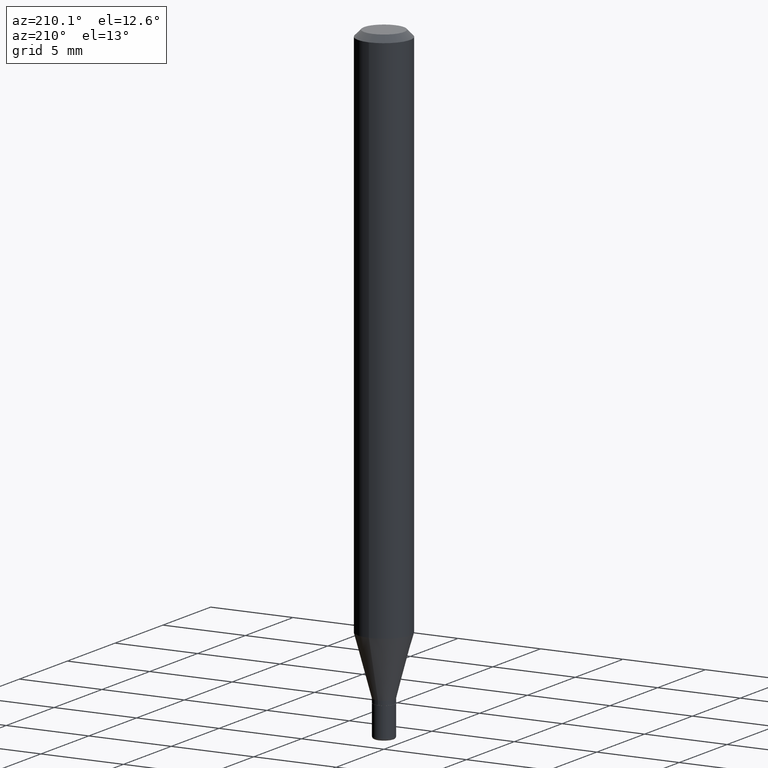
[diagram: clean part render]
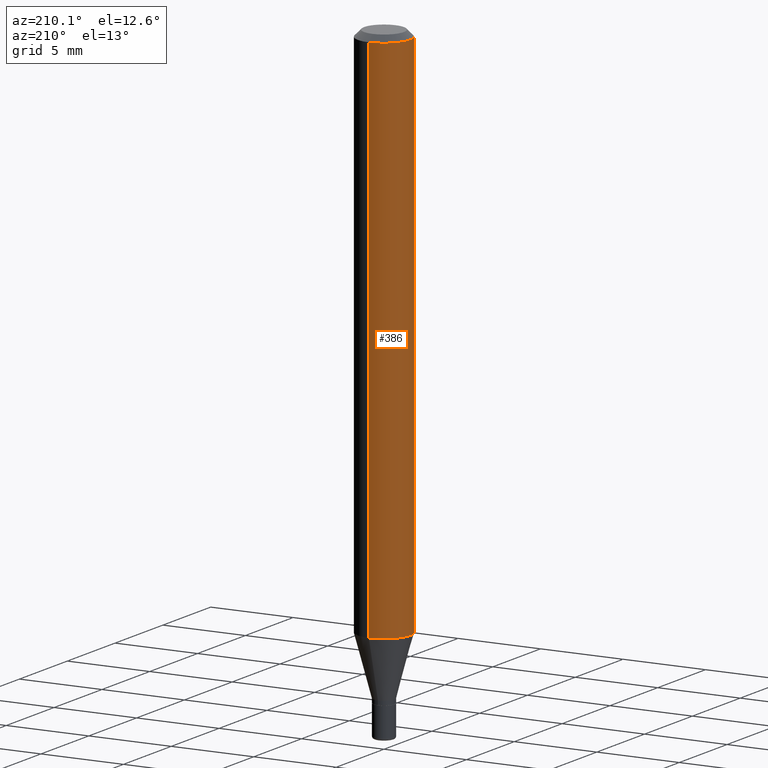
[diagram: same view with one face highlighted and labeled with its STEP entity id]
A machine part, auxiliary view. The second image highlights one B-rep face of the part: STEP entity #386.
In plain terms, the highlighted cylindrical surface (edge-blend (fillet) strip) has radius 1.5875 mm, axis along (-0, 0, 1).
Its self-contained STEP definition (entity closure, byte-faithful):
#4 = AXIS2_PLACEMENT_3D ( 'NONE', #8, #80, #170 ) ;
#8 = CARTESIAN_POINT ( 'NONE',  ( 3.668319888636282221E-31, -5.237054916782051820E-17, -0.01499999999999970281 ) ) ;
#31 = AXIS2_PLACEMENT_3D ( 'NONE', #108, #118, #440 ) ;
#51 = CYLINDRICAL_SURFACE ( 'NONE', #404, 0.06250000000000000000 ) ;
#79 = VERTEX_POINT ( 'NONE', #394 ) ;
#80 = DIRECTION ( 'NONE',  ( -2.445546592424236492E-29, 3.491369944521436528E-15, 1.000000000000000000 ) ) ;
#95 = CIRCLE ( 'NONE', #31, 0.06250000000000000000 ) ;
#106 = DIRECTION ( 'NONE',  ( -2.445546592424236773E-29, 3.491369944521436528E-15, 1.000000000000000000 ) ) ;
#108 = CARTESIAN_POINT ( 'NONE',  ( 3.118189523210138983E-29, -4.451664595711349999E-15, -1.275048094716167757 ) ) ;
#118 = DIRECTION ( 'NONE',  ( -2.445546592424236492E-29, 3.491369944521436528E-15, 1.000000000000000000 ) ) ;
#134 = DIRECTION ( 'NONE',  ( -2.445546592424236492E-29, 3.491369944521436528E-15, 1.000000000000000000 ) ) ;
#142 = EDGE_CURVE ( 'NONE', #178, #238, #153, .T. ) ;
#153 = LINE ( 'NONE', #349, #358 ) ;
#158 = CIRCLE ( 'NONE', #4, 0.06250000000000000000 ) ;
#170 = DIRECTION ( 'NONE',  ( -6.982962677686265922E-15, -1.000000000000000000, 3.483106191921935554E-15 ) ) ;
#172 = EDGE_LOOP ( 'NONE', ( #316, #373, #411, #251 ) ) ;
#178 = VERTEX_POINT ( 'NONE', #345 ) ;
#216 = CARTESIAN_POINT ( 'NONE',  ( 0.000000000000000000, 0.000000000000000000, 0.000000000000000000 ) ) ;
#238 = VERTEX_POINT ( 'NONE', #272 ) ;
#251 = ORIENTED_EDGE ( 'NONE', *, *, #510, .F. ) ;
#270 = VECTOR ( 'NONE', #278, 39.37007874015748143 ) ;
#272 = CARTESIAN_POINT ( 'NONE',  ( 4.440892098500939734E-16, 0.06249999999999995143, -0.01499999999999992138 ) ) ;
#278 = DIRECTION ( 'NONE',  ( -2.445546592424236773E-29, 3.491369944521436528E-15, 1.000000000000000000 ) ) ;
#312 = EDGE_CURVE ( 'NONE', #178, #79, #95, .T. ) ;
#316 = ORIENTED_EDGE ( 'NONE', *, *, #142, .F. ) ;
#329 = EDGE_CURVE ( 'NONE', #79, #398, #362, .T. ) ;
#345 = CARTESIAN_POINT ( 'NONE',  ( 4.440892098500935790E-16, 0.06249999999999553135, -1.275048094716167979 ) ) ;
#349 = CARTESIAN_POINT ( 'NONE',  ( 4.440892098500625669E-16, 0.06250000000000000000, -2.182106215325897830E-16 ) ) ;
#358 = VECTOR ( 'NONE', #106, 39.37007874015748143 ) ;
#362 = LINE ( 'NONE', #515, #270 ) ;
#373 = ORIENTED_EDGE ( 'NONE', *, *, #312, .T. ) ;
#376 = CARTESIAN_POINT ( 'NONE',  ( -4.364351673553912750E-16, -0.06250000000000005551, -0.01499999999999948597 ) ) ;
#386 = ADVANCED_FACE ( 'NONE', ( #410 ), #51, .T. ) ;
#394 = CARTESIAN_POINT ( 'NONE',  ( -4.364351673553606080E-16, -0.06250000000000446865, -1.275048094716167535 ) ) ;
#398 = VERTEX_POINT ( 'NONE', #376 ) ;
#404 = AXIS2_PLACEMENT_3D ( 'NONE', #216, #134, #458 ) ;
#410 = FACE_OUTER_BOUND ( 'NONE', #172, .T. ) ;
#411 = ORIENTED_EDGE ( 'NONE', *, *, #329, .T. ) ;
#440 = DIRECTION ( 'NONE',  ( -6.982962677686265922E-15, -1.000000000000000000, 4.370956789862821150E-15 ) ) ;
#458 = DIRECTION ( 'NONE',  ( -6.982962677686265922E-15, -1.000000000000000000, 3.491369944521436528E-15 ) ) ;
#510 = EDGE_CURVE ( 'NONE', #238, #398, #158, .T. ) ;
#515 = CARTESIAN_POINT ( 'NONE',  ( -4.364351673553916201E-16, -0.06250000000000000000, 2.182106215325897830E-16 ) ) ;